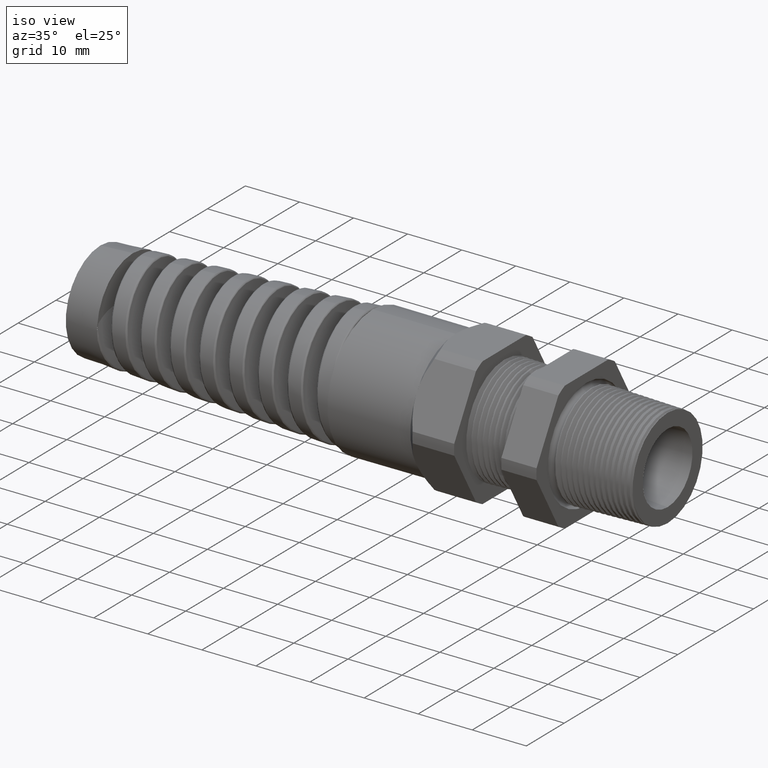
[diagram: clean part render]
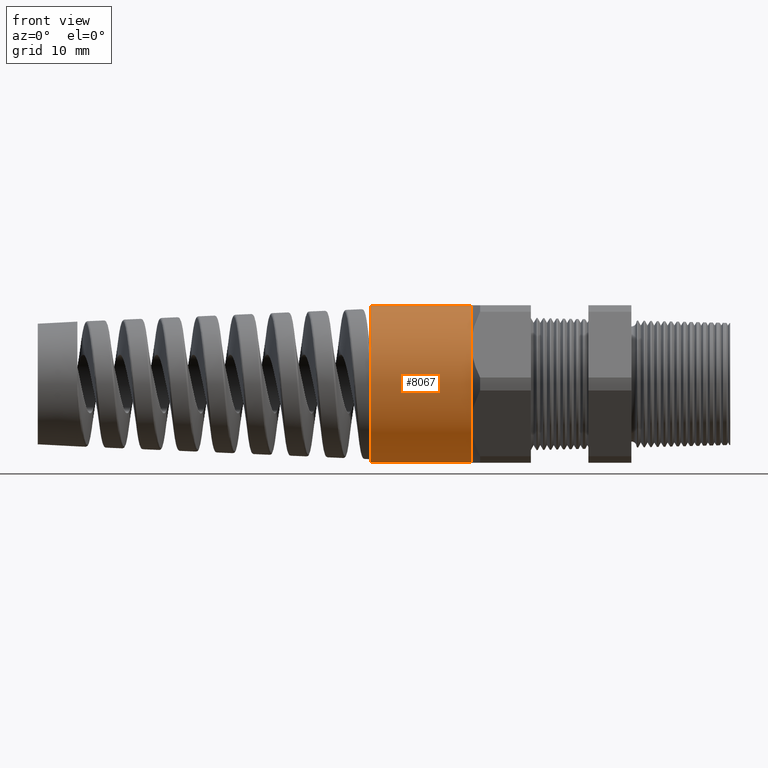
[diagram: tour spotlight — one face highlighted and labeled with its STEP entity id]
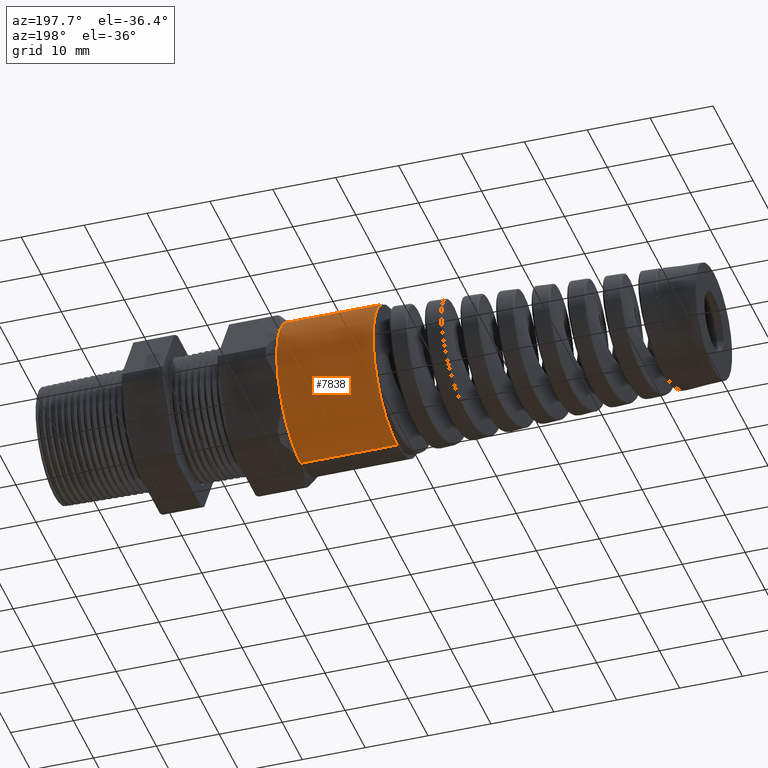
[diagram: tour spotlight — one face highlighted and labeled with its STEP entity id]
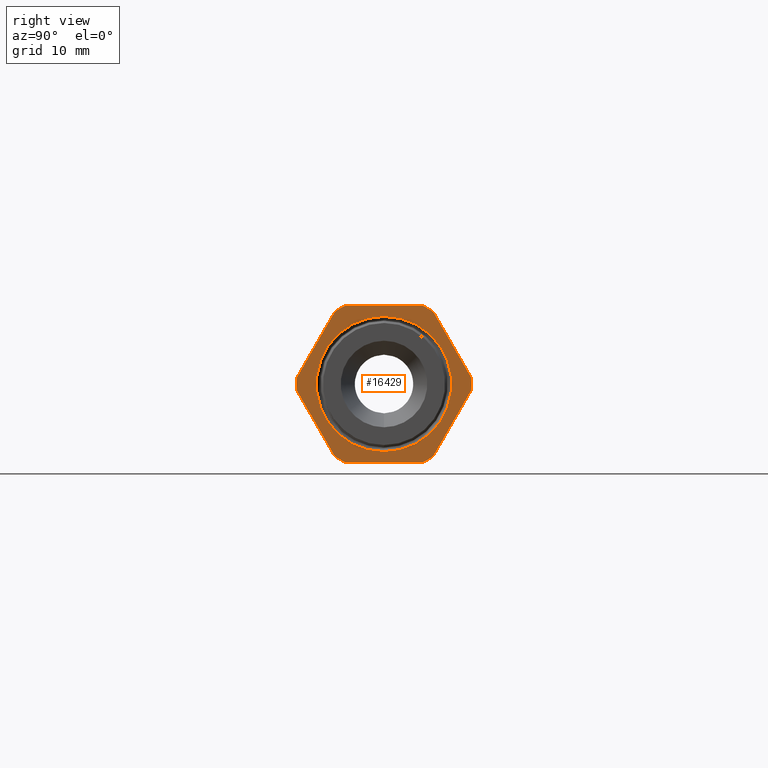
[diagram: tour spotlight — one face highlighted and labeled with its STEP entity id]
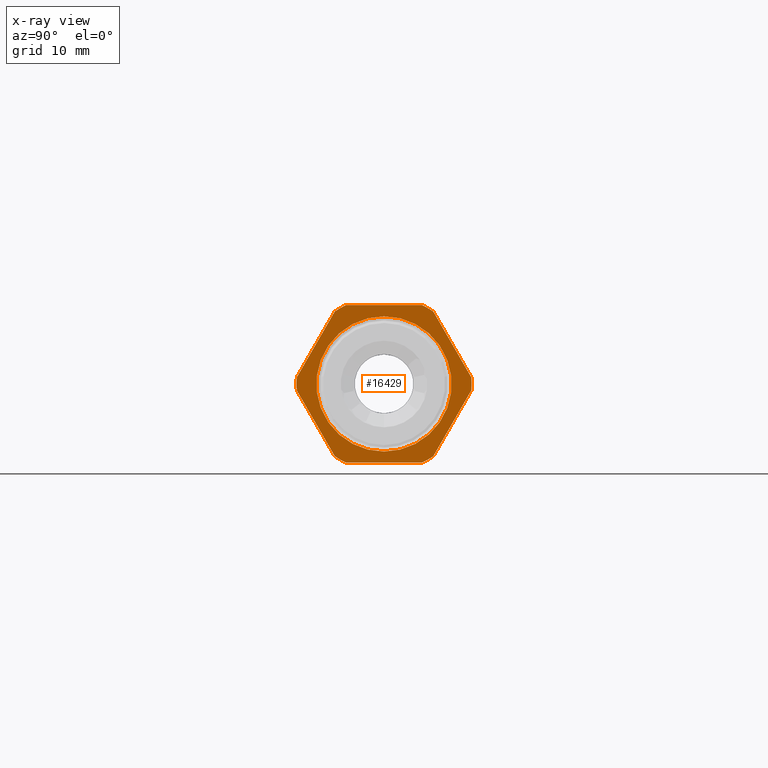
[diagram: x-ray of the same camera — body ghosted, this tour face saturated]
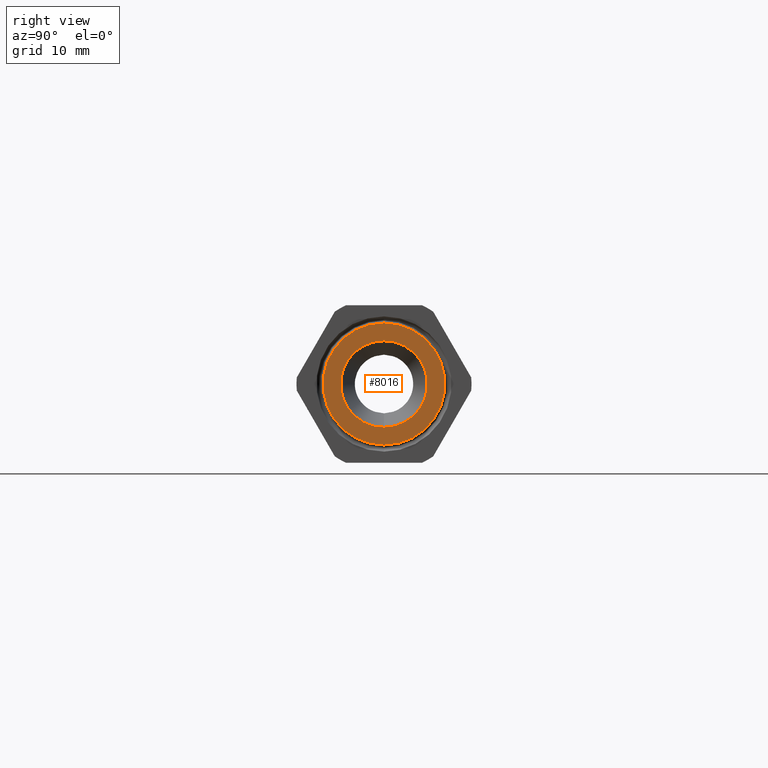
[diagram: tour spotlight — one face highlighted and labeled with its STEP entity id]
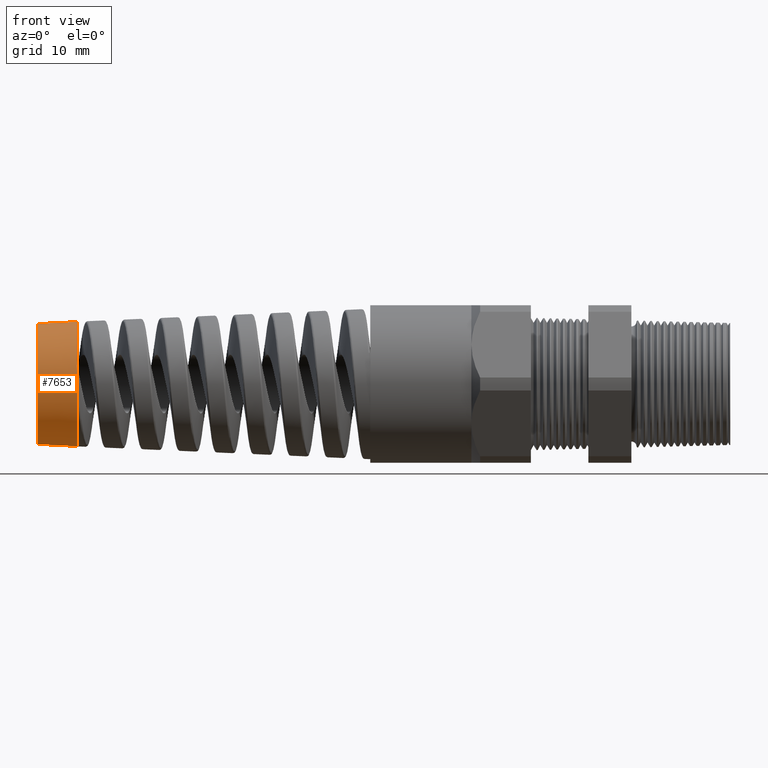
[diagram: tour spotlight — one face highlighted and labeled with its STEP entity id]
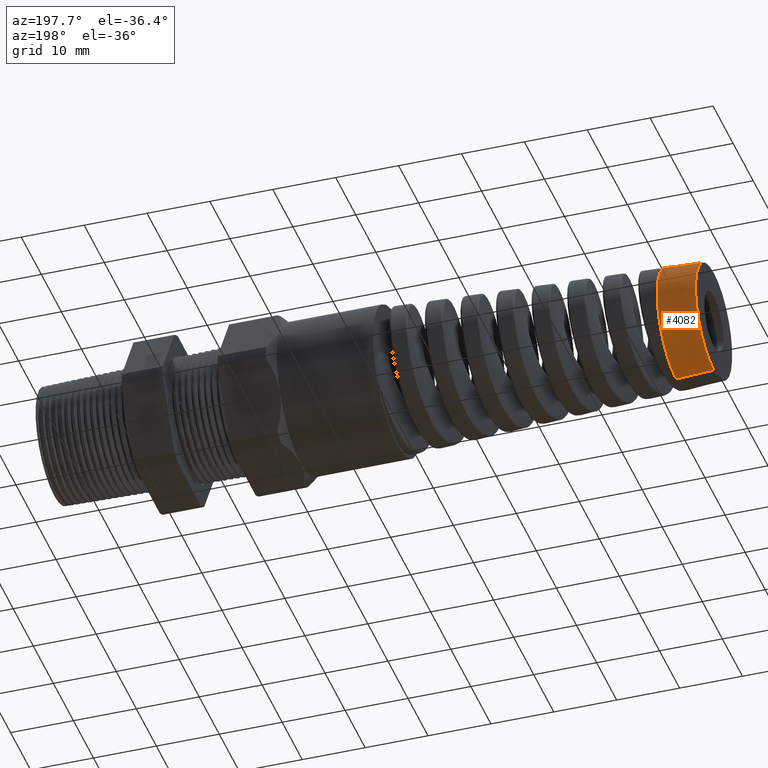
[diagram: tour spotlight — one face highlighted and labeled with its STEP entity id]
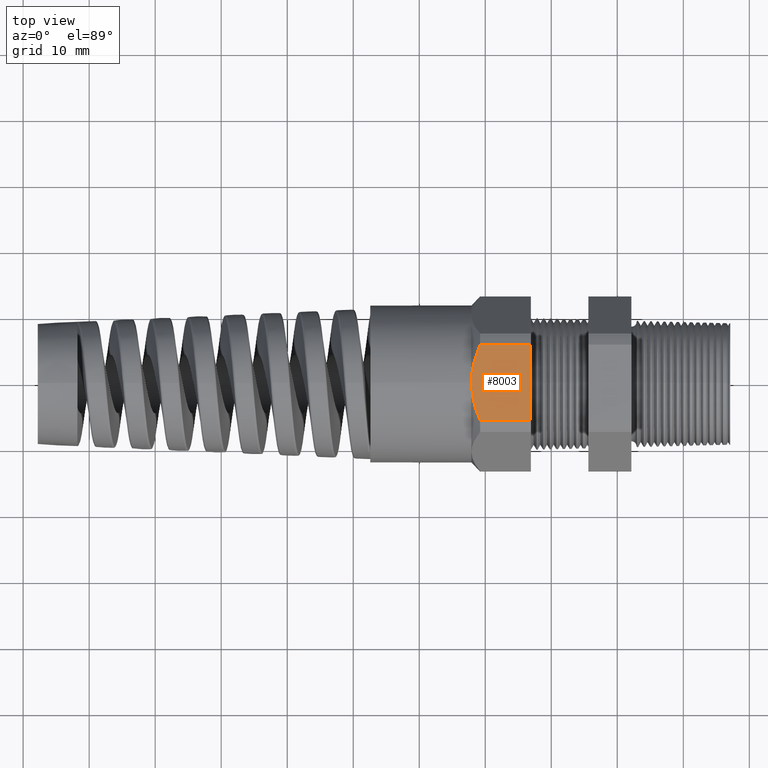
[diagram: tour spotlight — one face highlighted and labeled with its STEP entity id]
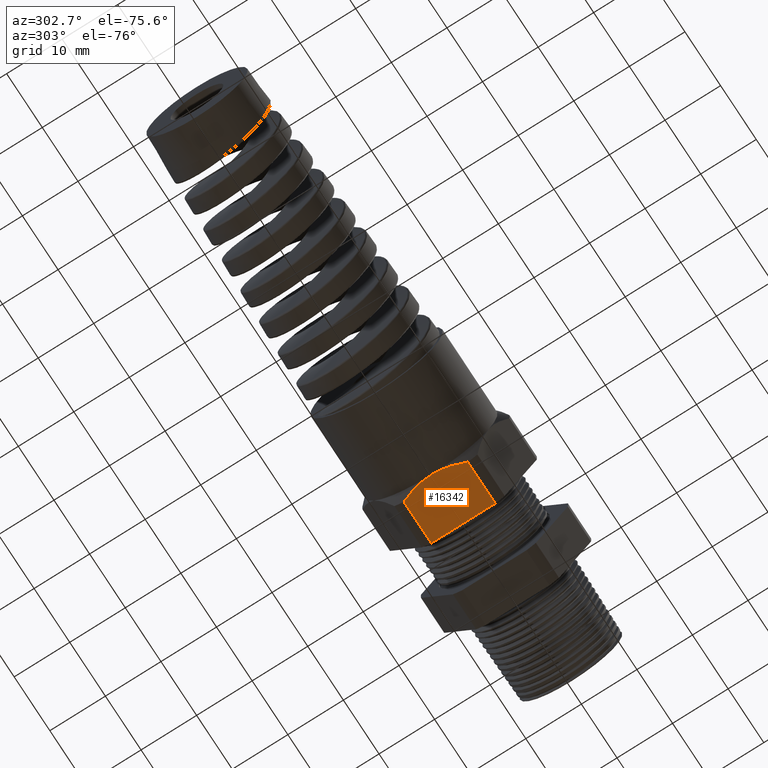
[diagram: tour spotlight — one face highlighted and labeled with its STEP entity id]
A machine part: a face-by-face anatomy tour. The part has 248 B-rep faces; the first image is the clean iso view, then the 8 largest visible faces are spotlighted one at a time (largest first), each with its STEP entity span.

Face 1 — front view, entity #8067. In plain terms, the highlighted cylindrical surface (partial cylindrical patch) has radius 11.938 mm, axis along (1, 0, 0).
Definition (entity closure, byte-faithful):
#2181 = DIRECTION ( 'NONE',  ( 1.000000000000000000, 0.0000000000000000000, 0.0000000000000000000 ) ) ;
#2447 = CARTESIAN_POINT ( 'NONE',  ( -1.866920391036122300, 0.0000000000000000000, -0.4699999999999999200 ) ) ;
#2454 = CARTESIAN_POINT ( 'NONE',  ( -1.866920391036122300, 5.755839955992558400E-017, 0.4699999999999999200 ) ) ;
#2464 = VECTOR ( 'NONE', #2181, 39.37007874015748100 ) ;
#2465 = CARTESIAN_POINT ( 'NONE',  ( 1.326736918405036800, 0.0000000000000000000, -0.4699999999999999200 ) ) ;
#2466 = LINE ( 'NONE', #2465, #2464 ) ;
#2508 = CARTESIAN_POINT ( 'NONE',  ( -1.263700787401574700, 0.0000000000000000000, 0.4699999999999999200 ) ) ;
#2509 = DIRECTION ( 'NONE',  ( 1.000000000000000000, 0.0000000000000000000, 0.0000000000000000000 ) ) ;
#2510 = VECTOR ( 'NONE', #2509, 39.37007874015748100 ) ;
#2511 = CARTESIAN_POINT ( 'NONE',  ( 1.326736918405036800, 5.755839955992558400E-017, 0.4699999999999999200 ) ) ;
#2512 = LINE ( 'NONE', #2511, #2510 ) ;
#2522 = CARTESIAN_POINT ( 'NONE',  ( -1.263700787401574700, 0.0000000000000000000, -0.4700000000000002000 ) ) ;
#2610 = CARTESIAN_POINT ( 'NONE',  ( -1.263700787401574700, -0.4070319397786862900, 0.2349999999999999300 ) ) ;
#2772 = CARTESIAN_POINT ( 'NONE',  ( -1.263700787401574700, -0.4070319397786862400, -0.2349999999999999600 ) ) ;
#2811 = DIRECTION ( 'NONE',  ( 0.0000000000000000000, 0.0000000000000000000, -1.000000000000000000 ) ) ;
#2812 = DIRECTION ( 'NONE',  ( 1.000000000000000000, 0.0000000000000000000, 0.0000000000000000000 ) ) ;
#2813 = AXIS2_PLACEMENT_3D ( 'NONE', #2821, #2812, #2811 ) ;
#2815 = CYLINDRICAL_SURFACE ( 'NONE', #2813, 0.4699999999999999200 ) ;
#2816 = FACE_OUTER_BOUND ( 'NONE', #8064, .T. ) ;
#2821 = CARTESIAN_POINT ( 'NONE',  ( 1.326736918405036800, 0.0000000000000000000, 0.0000000000000000000 ) ) ;
#2837 = AXIS2_PLACEMENT_3D ( 'NONE', #2901, #2900, #2899 ) ;
#2838 = CIRCLE ( 'NONE', #2837, 0.4699999999999999200 ) ;
#2884 = DIRECTION ( 'NONE',  ( 0.0000000000000000000, 0.0000000000000000000, -1.000000000000000000 ) ) ;
#2885 = DIRECTION ( 'NONE',  ( 1.000000000000000000, 0.0000000000000000000, 0.0000000000000000000 ) ) ;
#2886 = CARTESIAN_POINT ( 'NONE',  ( -1.263700787401574400, 0.0000000000000000000, 0.0000000000000000000 ) ) ;
#2887 = AXIS2_PLACEMENT_3D ( 'NONE', #2886, #2885, #2884 ) ;
#2888 = CIRCLE ( 'NONE', #2887, 0.4699999999999999200 ) ;
#2889 = DIRECTION ( 'NONE',  ( 0.0000000000000000000, 0.0000000000000000000, 1.000000000000000000 ) ) ;
#2890 = DIRECTION ( 'NONE',  ( -1.000000000000000000, 0.0000000000000000000, 0.0000000000000000000 ) ) ;
#2891 = CARTESIAN_POINT ( 'NONE',  ( -1.866920391036122300, 0.0000000000000000000, 0.0000000000000000000 ) ) ;
#2892 = AXIS2_PLACEMENT_3D ( 'NONE', #2891, #2890, #2889 ) ;
#2893 = CIRCLE ( 'NONE', #2892, 0.4699999999999999200 ) ;
#2894 = DIRECTION ( 'NONE',  ( 0.0000000000000000000, 0.0000000000000000000, -1.000000000000000000 ) ) ;
#2895 = DIRECTION ( 'NONE',  ( 1.000000000000000000, 0.0000000000000000000, 0.0000000000000000000 ) ) ;
#2896 = CARTESIAN_POINT ( 'NONE',  ( -1.263700787401574400, 0.0000000000000000000, 0.0000000000000000000 ) ) ;
#2897 = AXIS2_PLACEMENT_3D ( 'NONE', #2896, #2895, #2894 ) ;
#2898 = CIRCLE ( 'NONE', #2897, 0.4699999999999999200 ) ;
#2899 = DIRECTION ( 'NONE',  ( 0.0000000000000000000, 0.0000000000000000000, -1.000000000000000000 ) ) ;
#2900 = DIRECTION ( 'NONE',  ( 1.000000000000000000, 0.0000000000000000000, 0.0000000000000000000 ) ) ;
#2901 = CARTESIAN_POINT ( 'NONE',  ( -1.263700787401574400, 0.0000000000000000000, 0.0000000000000000000 ) ) ;
#7676 = VERTEX_POINT ( 'NONE', #2454 ) ;
#7684 = VERTEX_POINT ( 'NONE', #2447 ) ;
#7860 = EDGE_CURVE ( 'NONE', #7684, #7863, #2466, .T. ) ;
#7863 = VERTEX_POINT ( 'NONE', #2522 ) ;
#7866 = EDGE_CURVE ( 'NONE', #7676, #7869, #2512, .T. ) ;
#7869 = VERTEX_POINT ( 'NONE', #2508 ) ;
#7969 = VERTEX_POINT ( 'NONE', #2610 ) ;
#8032 = VERTEX_POINT ( 'NONE', #2772 ) ;
#8044 = ORIENTED_EDGE ( 'NONE', *, *, #8097, .F. ) ;
#8058 = ORIENTED_EDGE ( 'NONE', *, *, #7866, .F. ) ;
#8064 = EDGE_LOOP ( 'NONE', ( #8058, #8044, #8091, #8098, #8092, #8093 ) ) ;
#8067 = ADVANCED_FACE ( 'NONE', ( #2816 ), #2815, .T. ) ;
#8091 = ORIENTED_EDGE ( 'NONE', *, *, #7860, .T. ) ;
#8092 = ORIENTED_EDGE ( 'NONE', *, *, #8095, .F. ) ;
#8093 = ORIENTED_EDGE ( 'NONE', *, *, #8096, .F. ) ;
#8095 = EDGE_CURVE ( 'NONE', #7969, #8032, #2838, .T. ) ;
#8096 = EDGE_CURVE ( 'NONE', #7869, #7969, #2898, .T. ) ;
#8097 = EDGE_CURVE ( 'NONE', #7684, #7676, #2893, .T. ) ;
#8098 = ORIENTED_EDGE ( 'NONE', *, *, #8099, .F. ) ;
#8099 = EDGE_CURVE ( 'NONE', #8032, #7863, #2888, .T. ) ;

Face 2 — auxiliary view, entity #7838. In plain terms, the highlighted cylindrical surface (partial cylindrical patch) has radius 11.938 mm, axis along (1, 0, 0).
Definition (entity closure, byte-faithful):
#2181 = DIRECTION ( 'NONE',  ( 1.000000000000000000, 0.0000000000000000000, 0.0000000000000000000 ) ) ;
#2429 = CYLINDRICAL_SURFACE ( 'NONE', #2493, 0.4699999999999999200 ) ;
#2430 = CARTESIAN_POINT ( 'NONE',  ( 1.326736918405036800, 0.0000000000000000000, 0.0000000000000000000 ) ) ;
#2431 = FACE_OUTER_BOUND ( 'NONE', #7810, .T. ) ;
#2447 = CARTESIAN_POINT ( 'NONE',  ( -1.866920391036122300, 0.0000000000000000000, -0.4699999999999999200 ) ) ;
#2453 = CARTESIAN_POINT ( 'NONE',  ( -1.263700787401574700, 0.4070319397786864000, 0.2350000000000000100 ) ) ;
#2454 = CARTESIAN_POINT ( 'NONE',  ( -1.866920391036122300, 5.755839955992558400E-017, 0.4699999999999999200 ) ) ;
#2464 = VECTOR ( 'NONE', #2181, 39.37007874015748100 ) ;
#2465 = CARTESIAN_POINT ( 'NONE',  ( 1.326736918405036800, 0.0000000000000000000, -0.4699999999999999200 ) ) ;
#2466 = LINE ( 'NONE', #2465, #2464 ) ;
#2467 = DIRECTION ( 'NONE',  ( 0.0000000000000000000, 0.0000000000000000000, -1.000000000000000000 ) ) ;
#2468 = DIRECTION ( 'NONE',  ( 1.000000000000000000, 0.0000000000000000000, 0.0000000000000000000 ) ) ;
#2469 = AXIS2_PLACEMENT_3D ( 'NONE', #2476, #2468, #2467 ) ;
#2470 = CIRCLE ( 'NONE', #2469, 0.4699999999999999200 ) ;
#2476 = CARTESIAN_POINT ( 'NONE',  ( -1.263700787401574400, 0.0000000000000000000, 0.0000000000000000000 ) ) ;
#2486 = DIRECTION ( 'NONE',  ( 0.0000000000000000000, 0.0000000000000000000, 1.000000000000000000 ) ) ;
#2487 = DIRECTION ( 'NONE',  ( -1.000000000000000000, 0.0000000000000000000, 0.0000000000000000000 ) ) ;
#2488 = CARTESIAN_POINT ( 'NONE',  ( -1.866920391036122300, 0.0000000000000000000, 0.0000000000000000000 ) ) ;
#2489 = AXIS2_PLACEMENT_3D ( 'NONE', #2488, #2487, #2486 ) ;
#2490 = CIRCLE ( 'NONE', #2489, 0.4699999999999999200 ) ;
#2491 = DIRECTION ( 'NONE',  ( 0.0000000000000000000, 0.0000000000000000000, -1.000000000000000000 ) ) ;
#2492 = DIRECTION ( 'NONE',  ( 1.000000000000000000, 0.0000000000000000000, 0.0000000000000000000 ) ) ;
#2493 = AXIS2_PLACEMENT_3D ( 'NONE', #2430, #2492, #2491 ) ;
#2497 = DIRECTION ( 'NONE',  ( 0.0000000000000000000, 0.0000000000000000000, -1.000000000000000000 ) ) ;
#2498 = DIRECTION ( 'NONE',  ( 1.000000000000000000, 0.0000000000000000000, 0.0000000000000000000 ) ) ;
#2499 = CARTESIAN_POINT ( 'NONE',  ( -1.263700787401574400, 0.0000000000000000000, 0.0000000000000000000 ) ) ;
#2500 = AXIS2_PLACEMENT_3D ( 'NONE', #2499, #2498, #2497 ) ;
#2501 = CIRCLE ( 'NONE', #2500, 0.4699999999999999200 ) ;
#2508 = CARTESIAN_POINT ( 'NONE',  ( -1.263700787401574700, 0.0000000000000000000, 0.4699999999999999200 ) ) ;
#2509 = DIRECTION ( 'NONE',  ( 1.000000000000000000, 0.0000000000000000000, 0.0000000000000000000 ) ) ;
#2510 = VECTOR ( 'NONE', #2509, 39.37007874015748100 ) ;
#2511 = CARTESIAN_POINT ( 'NONE',  ( 1.326736918405036800, 5.755839955992558400E-017, 0.4699999999999999200 ) ) ;
#2512 = LINE ( 'NONE', #2511, #2510 ) ;
#2517 = DIRECTION ( 'NONE',  ( 0.0000000000000000000, 0.0000000000000000000, -1.000000000000000000 ) ) ;
#2518 = DIRECTION ( 'NONE',  ( 1.000000000000000000, 0.0000000000000000000, 0.0000000000000000000 ) ) ;
#2519 = CARTESIAN_POINT ( 'NONE',  ( -1.263700787401574400, 0.0000000000000000000, 0.0000000000000000000 ) ) ;
#2520 = AXIS2_PLACEMENT_3D ( 'NONE', #2519, #2518, #2517 ) ;
#2521 = CIRCLE ( 'NONE', #2520, 0.4699999999999999200 ) ;
#2522 = CARTESIAN_POINT ( 'NONE',  ( -1.263700787401574700, 0.0000000000000000000, -0.4700000000000002000 ) ) ;
#2523 = CARTESIAN_POINT ( 'NONE',  ( -1.263700787401574700, 0.4070319397786864600, -0.2350000000000001300 ) ) ;
#7676 = VERTEX_POINT ( 'NONE', #2454 ) ;
#7677 = VERTEX_POINT ( 'NONE', #2453 ) ;
#7681 = ORIENTED_EDGE ( 'NONE', *, *, #7864, .F. ) ;
#7684 = VERTEX_POINT ( 'NONE', #2447 ) ;
#7810 = EDGE_LOOP ( 'NONE', ( #7844, #7882, #7884, #7681, #7859, #7861 ) ) ;
#7838 = ADVANCED_FACE ( 'NONE', ( #2431 ), #2429, .T. ) ;
#7839 = EDGE_CURVE ( 'NONE', #7676, #7684, #2490, .T. ) ;
#7844 = ORIENTED_EDGE ( 'NONE', *, *, #7839, .F. ) ;
#7858 = EDGE_CURVE ( 'NONE', #7863, #7862, #2470, .T. ) ;
#7859 = ORIENTED_EDGE ( 'NONE', *, *, #7858, .F. ) ;
#7860 = EDGE_CURVE ( 'NONE', #7684, #7863, #2466, .T. ) ;
#7861 = ORIENTED_EDGE ( 'NONE', *, *, #7860, .F. ) ;
#7862 = VERTEX_POINT ( 'NONE', #2523 ) ;
#7863 = VERTEX_POINT ( 'NONE', #2522 ) ;
#7864 = EDGE_CURVE ( 'NONE', #7862, #7677, #2521, .T. ) ;
#7866 = EDGE_CURVE ( 'NONE', #7676, #7869, #2512, .T. ) ;
#7869 = VERTEX_POINT ( 'NONE', #2508 ) ;
#7878 = EDGE_CURVE ( 'NONE', #7677, #7869, #2501, .T. ) ;
#7882 = ORIENTED_EDGE ( 'NONE', *, *, #7866, .T. ) ;
#7884 = ORIENTED_EDGE ( 'NONE', *, *, #7878, .F. ) ;

Face 3 — right view, entity #16429. An x-ray twin of the same camera follows (body ghosted, this face saturated) — the face is partly hidden behind the body. In plain terms, the highlighted planar face has unit normal (1, 0, 0).
Definition (entity closure, byte-faithful):
#871 = DIRECTION ( 'NONE',  ( 0.0000000000000000000, 0.0000000000000000000, -1.000000000000000000 ) ) ;
#872 = DIRECTION ( 'NONE',  ( -1.000000000000000000, 0.0000000000000000000, 0.0000000000000000000 ) ) ;
#873 = CARTESIAN_POINT ( 'NONE',  ( -0.3100000000000000000, 0.0000000000000000000, 0.0000000000000000000 ) ) ;
#874 = AXIS2_PLACEMENT_3D ( 'NONE', #873, #872, #871 ) ;
#875 = CIRCLE ( 'NONE', #874, 0.4032882708283273000 ) ;
#887 = CARTESIAN_POINT ( 'NONE',  ( -0.3100000000000000000, 0.0000000000000000000, -0.4032882708283273000 ) ) ;
#888 = CARTESIAN_POINT ( 'NONE',  ( -0.3100000000000000000, 4.938856900035819000E-017, 0.4032882708283273000 ) ) ;
#3290 = CARTESIAN_POINT ( 'NONE',  ( -0.3100000000000000000, 0.2938165587564949300, 0.4310947921287048300 ) ) ;
#3349 = PLANE ( 'NONE',  #3411 ) ;
#3350 = FACE_BOUND ( 'NONE', #16491, .T. ) ;
#3351 = FACE_OUTER_BOUND ( 'NONE', #16435, .T. ) ;
#3352 = CARTESIAN_POINT ( 'NONE',  ( -0.3100000000000000000, 0.2938165587564949800, -0.4310947921287047700 ) ) ;
#3387 = CARTESIAN_POINT ( 'NONE',  ( -0.3100000000000000000, -0.2938165587564947100, 0.4310947921287050500 ) ) ;
#3394 = DIRECTION ( 'NONE',  ( 0.0000000000000000000, 0.4999999999999998900, 0.8660254037844386000 ) ) ;
#3395 = VECTOR ( 'NONE', #3394, 39.37007874015748100 ) ;
#3396 = CARTESIAN_POINT ( 'NONE',  ( -0.3100000000000000000, 0.6420319397786863300, 0.1720319397786860300 ) ) ;
#3397 = LINE ( 'NONE', #3396, #3395 ) ;
#3402 = CARTESIAN_POINT ( 'NONE',  ( -0.3100000000000000000, 0.5202473208008778800, -0.03890520787129524800 ) ) ;
#3403 = CARTESIAN_POINT ( 'NONE',  ( -0.3100000000000000000, 0.5202473208008776600, 0.03890520787129531800 ) ) ;
#3408 = DIRECTION ( 'NONE',  ( 0.0000000000000000000, 0.0000000000000000000, -1.000000000000000000 ) ) ;
#3409 = DIRECTION ( 'NONE',  ( 1.000000000000000000, 0.0000000000000000000, 0.0000000000000000000 ) ) ;
#3410 = CARTESIAN_POINT ( 'NONE',  ( -0.3100000000000000000, 0.9399999999999999500, 0.0000000000000000000 ) ) ;
#3411 = AXIS2_PLACEMENT_3D ( 'NONE', #3410, #3409, #3408 ) ;
#3412 = DIRECTION ( 'NONE',  ( 1.000000000000000000, 0.0000000000000000000, 0.0000000000000000000 ) ) ;
#3413 = CARTESIAN_POINT ( 'NONE',  ( -0.3100000000000000000, 0.0000000000000000000, 0.0000000000000000000 ) ) ;
#3414 = AXIS2_PLACEMENT_3D ( 'NONE', #3413, #3412, #3476 ) ;
#3415 = CIRCLE ( 'NONE', #3414, 0.5217000000000000500 ) ;
#3416 = DIRECTION ( 'NONE',  ( 0.0000000000000000000, 1.000000000000000000, 0.0000000000000000000 ) ) ;
#3417 = VECTOR ( 'NONE', #3416, 39.37007874015748100 ) ;
#3418 = CARTESIAN_POINT ( 'NONE',  ( -0.3100000000000000000, 0.9399999999999999500, -0.4700000000000002000 ) ) ;
#3423 = LINE ( 'NONE', #3418, #3417 ) ;
#3426 = DIRECTION ( 'NONE',  ( 0.0000000000000000000, -0.4999999999999998300, 0.8660254037844388200 ) ) ;
#3427 = VECTOR ( 'NONE', #3426, 39.37007874015748100 ) ;
#3428 = CARTESIAN_POINT ( 'NONE',  ( -0.3100000000000000000, 0.6420319397786862200, -0.1720319397786860500 ) ) ;
#3429 = LINE ( 'NONE', #3428, #3427 ) ;
#3430 = DIRECTION ( 'NONE',  ( 0.0000000000000000000, -1.000000000000000000, 0.0000000000000000000 ) ) ;
#3431 = VECTOR ( 'NONE', #3430, 39.37007874015748100 ) ;
#3432 = CARTESIAN_POINT ( 'NONE',  ( -0.3100000000000000000, 0.9399999999999999500, 0.4699999999999999200 ) ) ;
#3433 = LINE ( 'NONE', #3432, #3431 ) ;
#3434 = CARTESIAN_POINT ( 'NONE',  ( -0.3100000000000000000, 0.2264307620443832800, 0.4699999999999999200 ) ) ;
#3435 = DIRECTION ( 'NONE',  ( 0.0000000000000000000, 0.0000000000000000000, -1.000000000000000000 ) ) ;
#3436 = DIRECTION ( 'NONE',  ( 1.000000000000000000, 0.0000000000000000000, 0.0000000000000000000 ) ) ;
#3437 = CARTESIAN_POINT ( 'NONE',  ( -0.3100000000000000000, 0.0000000000000000000, 0.0000000000000000000 ) ) ;
#3438 = AXIS2_PLACEMENT_3D ( 'NONE', #3437, #3436, #3435 ) ;
#3439 = CIRCLE ( 'NONE', #3438, 0.5217000000000000500 ) ;
#3440 = CARTESIAN_POINT ( 'NONE',  ( -0.3100000000000000000, -0.2264307620443835600, 0.4699999999999997500 ) ) ;
#3441 = DIRECTION ( 'NONE',  ( 0.0000000000000000000, 0.0000000000000000000, -1.000000000000000000 ) ) ;
#3442 = DIRECTION ( 'NONE',  ( 1.000000000000000000, 0.0000000000000000000, 0.0000000000000000000 ) ) ;
#3443 = CARTESIAN_POINT ( 'NONE',  ( -0.3100000000000000000, 0.0000000000000000000, 0.0000000000000000000 ) ) ;
#3444 = AXIS2_PLACEMENT_3D ( 'NONE', #3443, #3442, #3441 ) ;
#3445 = CIRCLE ( 'NONE', #3444, 0.5217000000000000500 ) ;
#3453 = CARTESIAN_POINT ( 'NONE',  ( -0.3100000000000000000, 0.2264307620443829200, -0.4700000000000000800 ) ) ;
#3454 = DIRECTION ( 'NONE',  ( 0.0000000000000000000, 0.0000000000000000000, -1.000000000000000000 ) ) ;
#3455 = DIRECTION ( 'NONE',  ( 1.000000000000000000, 0.0000000000000000000, 0.0000000000000000000 ) ) ;
#3456 = CARTESIAN_POINT ( 'NONE',  ( -0.3100000000000000000, 0.0000000000000000000, 0.0000000000000000000 ) ) ;
#3457 = AXIS2_PLACEMENT_3D ( 'NONE', #3456, #3455, #3454 ) ;
#3458 = CIRCLE ( 'NONE', #3457, 0.5217000000000000500 ) ;
#3459 = DIRECTION ( 'NONE',  ( 0.0000000000000000000, -0.4999999999999997200, -0.8660254037844388200 ) ) ;
#3460 = VECTOR ( 'NONE', #3459, 39.37007874015748100 ) ;
#3461 = CARTESIAN_POINT ( 'NONE',  ( -0.3100000000000000000, -0.1720319397786864200, 0.6420319397786857800 ) ) ;
#3462 = LINE ( 'NONE', #3461, #3460 ) ;
#3463 = DIRECTION ( 'NONE',  ( 0.0000000000000000000, 0.0000000000000000000, -1.000000000000000000 ) ) ;
#3464 = DIRECTION ( 'NONE',  ( 1.000000000000000000, 0.0000000000000000000, 0.0000000000000000000 ) ) ;
#3465 = CARTESIAN_POINT ( 'NONE',  ( -0.3100000000000000000, 0.0000000000000000000, 0.0000000000000000000 ) ) ;
#3466 = AXIS2_PLACEMENT_3D ( 'NONE', #3465, #3464, #3463 ) ;
#3467 = CIRCLE ( 'NONE', #3466, 0.5217000000000000500 ) ;
#3468 = CARTESIAN_POINT ( 'NONE',  ( -0.3100000000000000000, -0.2264307620443828100, -0.4700000000000002000 ) ) ;
#3469 = CARTESIAN_POINT ( 'NONE',  ( -0.3100000000000000000, -0.5202473208008777700, 0.03890520787129464500 ) ) ;
#3470 = DIRECTION ( 'NONE',  ( 0.0000000000000000000, 0.4999999999999998900, -0.8660254037844386000 ) ) ;
#3471 = VECTOR ( 'NONE', #3470, 39.37007874015748900 ) ;
#3472 = CARTESIAN_POINT ( 'NONE',  ( -0.3100000000000000000, -0.1720319397786862800, -0.6420319397786862200 ) ) ;
#3473 = LINE ( 'NONE', #3472, #3471 ) ;
#3474 = CARTESIAN_POINT ( 'NONE',  ( -0.3100000000000000000, -0.5202473208008777700, -0.03890520787129508200 ) ) ;
#3475 = CARTESIAN_POINT ( 'NONE',  ( -0.3100000000000000000, -0.2938165587564944800, -0.4310947921287051100 ) ) ;
#3476 = DIRECTION ( 'NONE',  ( 0.0000000000000000000, 0.0000000000000000000, -1.000000000000000000 ) ) ;
#3490 = DIRECTION ( 'NONE',  ( 0.0000000000000000000, 0.0000000000000000000, -1.000000000000000000 ) ) ;
#3491 = DIRECTION ( 'NONE',  ( -1.000000000000000000, 0.0000000000000000000, 0.0000000000000000000 ) ) ;
#3492 = CARTESIAN_POINT ( 'NONE',  ( -0.3100000000000000000, 0.0000000000000000000, 0.0000000000000000000 ) ) ;
#3493 = AXIS2_PLACEMENT_3D ( 'NONE', #3492, #3491, #3490 ) ;
#3494 = CIRCLE ( 'NONE', #3493, 0.4032882708283273000 ) ;
#3495 = DIRECTION ( 'NONE',  ( 0.0000000000000000000, 0.0000000000000000000, -1.000000000000000000 ) ) ;
#3496 = DIRECTION ( 'NONE',  ( 1.000000000000000000, 0.0000000000000000000, 0.0000000000000000000 ) ) ;
#3497 = CARTESIAN_POINT ( 'NONE',  ( -0.3100000000000000000, 0.0000000000000000000, 0.0000000000000000000 ) ) ;
#3498 = AXIS2_PLACEMENT_3D ( 'NONE', #3497, #3496, #3495 ) ;
#3499 = CIRCLE ( 'NONE', #3498, 0.5217000000000000500 ) ;
#5219 = EDGE_CURVE ( 'NONE', #5241, #5239, #875, .T. ) ;
#5239 = VERTEX_POINT ( 'NONE', #888 ) ;
#5241 = VERTEX_POINT ( 'NONE', #887 ) ;
#16392 = VERTEX_POINT ( 'NONE', #3290 ) ;
#16427 = VERTEX_POINT ( 'NONE', #3352 ) ;
#16429 = ADVANCED_FACE ( 'NONE', ( #3351, #3350 ), #3349, .T. ) ;
#16431 = VERTEX_POINT ( 'NONE', #3403 ) ;
#16435 = EDGE_LOOP ( 'NONE', ( #16437, #16459, #16458, #16450, #16455, #16452, #16468, #16482, #16466, #16481, #16469, #16485 ) ) ;
#16437 = ORIENTED_EDGE ( 'NONE', *, *, #16440, .T. ) ;
#16438 = VERTEX_POINT ( 'NONE', #3402 ) ;
#16440 = EDGE_CURVE ( 'NONE', #16427, #16438, #3397, .T. ) ;
#16442 = VERTEX_POINT ( 'NONE', #3387 ) ;
#16448 = EDGE_CURVE ( 'NONE', #16392, #16453, #3445, .T. ) ;
#16449 = VERTEX_POINT ( 'NONE', #3440 ) ;
#16450 = ORIENTED_EDGE ( 'NONE', *, *, #16448, .T. ) ;
#16451 = EDGE_CURVE ( 'NONE', #16449, #16442, #3439, .T. ) ;
#16452 = ORIENTED_EDGE ( 'NONE', *, *, #16451, .T. ) ;
#16453 = VERTEX_POINT ( 'NONE', #3434 ) ;
#16454 = EDGE_CURVE ( 'NONE', #16453, #16449, #3433, .T. ) ;
#16455 = ORIENTED_EDGE ( 'NONE', *, *, #16454, .T. ) ;
#16457 = EDGE_CURVE ( 'NONE', #16431, #16392, #3429, .T. ) ;
#16458 = ORIENTED_EDGE ( 'NONE', *, *, #16457, .T. ) ;
#16459 = ORIENTED_EDGE ( 'NONE', *, *, #16479, .T. ) ;
#16461 = EDGE_CURVE ( 'NONE', #16473, #16480, #3423, .T. ) ;
#16462 = EDGE_CURVE ( 'NONE', #16464, #16473, #3415, .T. ) ;
#16464 = VERTEX_POINT ( 'NONE', #3475 ) ;
#16465 = VERTEX_POINT ( 'NONE', #3474 ) ;
#16466 = ORIENTED_EDGE ( 'NONE', *, *, #16470, .T. ) ;
#16468 = ORIENTED_EDGE ( 'NONE', *, *, #16477, .T. ) ;
#16469 = ORIENTED_EDGE ( 'NONE', *, *, #16461, .T. ) ;
#16470 = EDGE_CURVE ( 'NONE', #16465, #16464, #3473, .T. ) ;
#16471 = VERTEX_POINT ( 'NONE', #3469 ) ;
#16473 = VERTEX_POINT ( 'NONE', #3468 ) ;
#16476 = EDGE_CURVE ( 'NONE', #16471, #16465, #3467, .T. ) ;
#16477 = EDGE_CURVE ( 'NONE', #16442, #16471, #3462, .T. ) ;
#16479 = EDGE_CURVE ( 'NONE', #16438, #16431, #3458, .T. ) ;
#16480 = VERTEX_POINT ( 'NONE', #3453 ) ;
#16481 = ORIENTED_EDGE ( 'NONE', *, *, #16462, .T. ) ;
#16482 = ORIENTED_EDGE ( 'NONE', *, *, #16476, .T. ) ;
#16485 = ORIENTED_EDGE ( 'NONE', *, *, #16488, .T. ) ;
#16487 = ORIENTED_EDGE ( 'NONE', *, *, #5219, .T. ) ;
#16488 = EDGE_CURVE ( 'NONE', #16480, #16427, #3499, .T. ) ;
#16489 = ORIENTED_EDGE ( 'NONE', *, *, #16490, .T. ) ;
#16490 = EDGE_CURVE ( 'NONE', #5239, #5241, #3494, .T. ) ;
#16491 = EDGE_LOOP ( 'NONE', ( #16487, #16489 ) ) ;

Face 4 — right view, entity #8016. In plain terms, the highlighted planar face has unit normal (1, 0, 0).
Definition (entity closure, byte-faithful):
#327 = CARTESIAN_POINT ( 'NONE',  ( 0.2800000000000000300, 0.0000000000000000000, 0.3638552484013815000 ) ) ;
#2435 = CARTESIAN_POINT ( 'NONE',  ( 0.2800000000000000300, 0.0000000000000000000, -0.2581688578272929300 ) ) ;
#2541 = DIRECTION ( 'NONE',  ( 0.0000000000000000000, 0.0000000000000000000, -1.000000000000000000 ) ) ;
#2542 = DIRECTION ( 'NONE',  ( 1.000000000000000000, 0.0000000000000000000, 0.0000000000000000000 ) ) ;
#2543 = CARTESIAN_POINT ( 'NONE',  ( 0.2800000000000000300, 0.0000000000000000000, 0.0000000000000000000 ) ) ;
#2544 = AXIS2_PLACEMENT_3D ( 'NONE', #2543, #2542, #2541 ) ;
#2545 = CIRCLE ( 'NONE', #2544, 0.3638552484013815000 ) ;
#2547 = CARTESIAN_POINT ( 'NONE',  ( 0.2800000000000000300, 4.456617515210001900E-017, -0.3638552484013815000 ) ) ;
#2574 = CARTESIAN_POINT ( 'NONE',  ( 0.2800000000000000300, 3.161656653777223500E-017, 0.2581688578272929300 ) ) ;
#2575 = DIRECTION ( 'NONE',  ( 0.0000000000000000000, 0.0000000000000000000, -1.000000000000000000 ) ) ;
#2576 = DIRECTION ( 'NONE',  ( 1.000000000000000000, 0.0000000000000000000, 0.0000000000000000000 ) ) ;
#2577 = CARTESIAN_POINT ( 'NONE',  ( 0.2800000000000000300, 0.0000000000000000000, 0.0000000000000000000 ) ) ;
#2578 = AXIS2_PLACEMENT_3D ( 'NONE', #2577, #2576, #2575 ) ;
#2579 = CIRCLE ( 'NONE', #2578, 0.2581688578272929300 ) ;
#2683 = FACE_BOUND ( 'NONE', #16367, .T. ) ;
#2684 = FACE_OUTER_BOUND ( 'NONE', #16325, .T. ) ;
#2689 = PLANE ( 'NONE',  #2747 ) ;
#2744 = DIRECTION ( 'NONE',  ( 0.0000000000000000000, 0.0000000000000000000, -1.000000000000000000 ) ) ;
#2745 = DIRECTION ( 'NONE',  ( 1.000000000000000000, 0.0000000000000000000, 0.0000000000000000000 ) ) ;
#2746 = CARTESIAN_POINT ( 'NONE',  ( 0.2799999999999999700, 0.2581688578272929300, 0.0000000000000000000 ) ) ;
#2747 = AXIS2_PLACEMENT_3D ( 'NONE', #2746, #2745, #2744 ) ;
#2794 = DIRECTION ( 'NONE',  ( 0.0000000000000000000, 0.0000000000000000000, -1.000000000000000000 ) ) ;
#2795 = DIRECTION ( 'NONE',  ( 1.000000000000000000, 0.0000000000000000000, 0.0000000000000000000 ) ) ;
#2796 = CARTESIAN_POINT ( 'NONE',  ( 0.2800000000000000300, 0.0000000000000000000, 0.0000000000000000000 ) ) ;
#2797 = AXIS2_PLACEMENT_3D ( 'NONE', #2796, #2795, #2794 ) ;
#2804 = CIRCLE ( 'NONE', #2797, 0.3638552484013815000 ) ;
#3270 = DIRECTION ( 'NONE',  ( 0.0000000000000000000, 0.0000000000000000000, -1.000000000000000000 ) ) ;
#3271 = DIRECTION ( 'NONE',  ( 1.000000000000000000, 0.0000000000000000000, 0.0000000000000000000 ) ) ;
#3282 = AXIS2_PLACEMENT_3D ( 'NONE', #3285, #3271, #3270 ) ;
#3283 = CIRCLE ( 'NONE', #3282, 0.2581688578272929300 ) ;
#3285 = CARTESIAN_POINT ( 'NONE',  ( 0.2800000000000000300, 0.0000000000000000000, 0.0000000000000000000 ) ) ;
#5062 = VERTEX_POINT ( 'NONE', #327 ) ;
#7690 = VERTEX_POINT ( 'NONE', #2435 ) ;
#7901 = VERTEX_POINT ( 'NONE', #2547 ) ;
#7902 = EDGE_CURVE ( 'NONE', #7901, #5062, #2545, .T. ) ;
#7924 = EDGE_CURVE ( 'NONE', #7926, #7690, #2579, .T. ) ;
#7926 = VERTEX_POINT ( 'NONE', #2574 ) ;
#8016 = ADVANCED_FACE ( 'NONE', ( #2684, #2683 ), #2689, .T. ) ;
#8041 = EDGE_CURVE ( 'NONE', #5062, #7901, #2804, .T. ) ;
#16309 = ORIENTED_EDGE ( 'NONE', *, *, #7924, .F. ) ;
#16310 = ORIENTED_EDGE ( 'NONE', *, *, #8041, .T. ) ;
#16325 = EDGE_LOOP ( 'NONE', ( #16310, #16368 ) ) ;
#16365 = ORIENTED_EDGE ( 'NONE', *, *, #16366, .F. ) ;
#16366 = EDGE_CURVE ( 'NONE', #7690, #7926, #3283, .T. ) ;
#16367 = EDGE_LOOP ( 'NONE', ( #16365, #16309 ) ) ;
#16368 = ORIENTED_EDGE ( 'NONE', *, *, #7902, .T. ) ;

Face 5 — front view, entity #7653. In plain terms, the highlighted conical surface has half-angle 3 deg.
Definition (entity closure, byte-faithful):
#40 = DIRECTION ( 'NONE',  ( 0.0000000000000000000, 0.0000000000000000000, -1.000000000000000000 ) ) ;
#41 = DIRECTION ( 'NONE',  ( 1.000000000000000000, 0.0000000000000000000, 0.0000000000000000000 ) ) ;
#42 = CARTESIAN_POINT ( 'NONE',  ( -3.613780000000000200, 0.0000000000000000000, 0.0000000000000000000 ) ) ;
#43 = AXIS2_PLACEMENT_3D ( 'NONE', #42, #41, #40 ) ;
#44 = CIRCLE ( 'NONE', #43, 0.3720344495207378300 ) ;
#45 = CARTESIAN_POINT ( 'NONE',  ( -3.613780000000000200, -0.3666973055244363600, -0.06279106426332614600 ) ) ;
#2322 = FACE_OUTER_BOUND ( 'NONE', #7666, .T. ) ;
#2360 = DIRECTION ( 'NONE',  ( 0.9986295347545738300, -6.409306129323724800E-018, -0.05233595624294395300 ) ) ;
#2361 = VECTOR ( 'NONE', #2360, 39.37007874015748900 ) ;
#2362 = CARTESIAN_POINT ( 'NONE',  ( -3.613780000000000200, -4.556107977781267100E-017, -0.3720344495207439900 ) ) ;
#2363 = LINE ( 'NONE', #2362, #2361 ) ;
#2364 = DIRECTION ( 'NONE',  ( 0.9986295347545738300, 0.0000000000000000000, 0.05233595624294395300 ) ) ;
#2365 = VECTOR ( 'NONE', #2364, 39.37007874015748900 ) ;
#2366 = CARTESIAN_POINT ( 'NONE',  ( -3.613780000000000200, 0.0000000000000000000, 0.3720344495207439900 ) ) ;
#2367 = LINE ( 'NONE', #2366, #2365 ) ;
#2368 = CARTESIAN_POINT ( 'NONE',  ( -3.850000472440945600, -4.480303624455206300E-017, -0.3596546591389232500 ) ) ;
#2369 = DIRECTION ( 'NONE',  ( 0.0000000000000000000, 0.0000000000000000000, 1.000000000000000000 ) ) ;
#2370 = DIRECTION ( 'NONE',  ( -1.000000000000000000, 0.0000000000000000000, 0.0000000000000000000 ) ) ;
#2371 = CARTESIAN_POINT ( 'NONE',  ( -3.613780000000000200, 0.0000000000000000000, 0.0000000000000000000 ) ) ;
#2372 = AXIS2_PLACEMENT_3D ( 'NONE', #2371, #2370, #2369 ) ;
#2373 = CIRCLE ( 'NONE', #2372, 0.3720344495207439900 ) ;
#2374 = CARTESIAN_POINT ( 'NONE',  ( -3.850000472440945600, 0.0000000000000000000, 0.3596546591389232500 ) ) ;
#2375 = DIRECTION ( 'NONE',  ( 0.0000000000000000000, 0.0000000000000000000, 1.000000000000000000 ) ) ;
#2376 = DIRECTION ( 'NONE',  ( -1.000000000000000000, 0.0000000000000000000, 0.0000000000000000000 ) ) ;
#2377 = CARTESIAN_POINT ( 'NONE',  ( -3.850000472440945600, 0.0000000000000000000, 0.0000000000000000000 ) ) ;
#2378 = AXIS2_PLACEMENT_3D ( 'NONE', #2377, #2376, #2375 ) ;
#2379 = CIRCLE ( 'NONE', #2378, 0.3596546591389232500 ) ;
#2385 = DIRECTION ( 'NONE',  ( 0.0000000000000000000, 0.0000000000000000000, 1.000000000000000000 ) ) ;
#2386 = DIRECTION ( 'NONE',  ( 1.000000000000000000, 0.0000000000000000000, 0.0000000000000000000 ) ) ;
#2387 = CARTESIAN_POINT ( 'NONE',  ( -3.613780000000000200, 0.0000000000000000000, 0.0000000000000000000 ) ) ;
#2388 = AXIS2_PLACEMENT_3D ( 'NONE', #2387, #2386, #2385 ) ;
#2389 = CONICAL_SURFACE ( 'NONE', #2388, 0.3720344495207439900, 0.05235987755983000100 ) ;
#2428 = CARTESIAN_POINT ( 'NONE',  ( -3.613780000000000200, 0.0000000000000000000, 0.3720344495207439900 ) ) ;
#4454 = VERTEX_POINT ( 'NONE', #11739 ) ;
#5033 = EDGE_CURVE ( 'NONE', #5034, #4454, #44, .T. ) ;
#5034 = VERTEX_POINT ( 'NONE', #45 ) ;
#7651 = ORIENTED_EDGE ( 'NONE', *, *, #7657, .F. ) ;
#7652 = ORIENTED_EDGE ( 'NONE', *, *, #5033, .F. ) ;
#7653 = ADVANCED_FACE ( 'NONE', ( #2322 ), #2389, .T. ) ;
#7655 = ORIENTED_EDGE ( 'NONE', *, *, #7662, .F. ) ;
#7656 = ORIENTED_EDGE ( 'NONE', *, *, #7663, .T. ) ;
#7657 = EDGE_CURVE ( 'NONE', #7660, #7658, #2379, .T. ) ;
#7658 = VERTEX_POINT ( 'NONE', #2374 ) ;
#7659 = EDGE_CURVE ( 'NONE', #5034, #7664, #2373, .T. ) ;
#7660 = VERTEX_POINT ( 'NONE', #2368 ) ;
#7661 = ORIENTED_EDGE ( 'NONE', *, *, #7659, .T. ) ;
#7662 = EDGE_CURVE ( 'NONE', #7658, #7664, #2367, .T. ) ;
#7663 = EDGE_CURVE ( 'NONE', #7660, #4454, #2363, .T. ) ;
#7664 = VERTEX_POINT ( 'NONE', #2428 ) ;
#7666 = EDGE_LOOP ( 'NONE', ( #7651, #7656, #7652, #7661, #7655 ) ) ;
#11739 = CARTESIAN_POINT ( 'NONE',  ( -3.613780000000000200, -4.556107977781267100E-017, -0.3720344495207439900 ) ) ;

Face 6 — auxiliary view, entity #4082. In plain terms, the highlighted conical surface has half-angle 3 deg.
Definition (entity closure, byte-faithful):
#2360 = DIRECTION ( 'NONE',  ( 0.9986295347545738300, -6.409306129323724800E-018, -0.05233595624294395300 ) ) ;
#2361 = VECTOR ( 'NONE', #2360, 39.37007874015748900 ) ;
#2362 = CARTESIAN_POINT ( 'NONE',  ( -3.613780000000000200, -4.556107977781267100E-017, -0.3720344495207439900 ) ) ;
#2363 = LINE ( 'NONE', #2362, #2361 ) ;
#2364 = DIRECTION ( 'NONE',  ( 0.9986295347545738300, 0.0000000000000000000, 0.05233595624294395300 ) ) ;
#2365 = VECTOR ( 'NONE', #2364, 39.37007874015748900 ) ;
#2366 = CARTESIAN_POINT ( 'NONE',  ( -3.613780000000000200, 0.0000000000000000000, 0.3720344495207439900 ) ) ;
#2367 = LINE ( 'NONE', #2366, #2365 ) ;
#2368 = CARTESIAN_POINT ( 'NONE',  ( -3.850000472440945600, -4.480303624455206300E-017, -0.3596546591389232500 ) ) ;
#2374 = CARTESIAN_POINT ( 'NONE',  ( -3.850000472440945600, 0.0000000000000000000, 0.3596546591389232500 ) ) ;
#2428 = CARTESIAN_POINT ( 'NONE',  ( -3.613780000000000200, 0.0000000000000000000, 0.3720344495207439900 ) ) ;
#4067 = EDGE_CURVE ( 'NONE', #7658, #7660, #10428, .T. ) ;
#4075 = ORIENTED_EDGE ( 'NONE', *, *, #4115, .T. ) ;
#4076 = ORIENTED_EDGE ( 'NONE', *, *, #7662, .T. ) ;
#4077 = ORIENTED_EDGE ( 'NONE', *, *, #4067, .F. ) ;
#4078 = ORIENTED_EDGE ( 'NONE', *, *, #7663, .F. ) ;
#4079 = EDGE_LOOP ( 'NONE', ( #4078, #4077, #4076, #4075, #4156 ) ) ;
#4082 = ADVANCED_FACE ( 'NONE', ( #10423 ), #10422, .T. ) ;
#4115 = EDGE_CURVE ( 'NONE', #7664, #4470, #10471, .T. ) ;
#4156 = ORIENTED_EDGE ( 'NONE', *, *, #4456, .F. ) ;
#4454 = VERTEX_POINT ( 'NONE', #11739 ) ;
#4456 = EDGE_CURVE ( 'NONE', #4454, #4470, #11738, .T. ) ;
#4470 = VERTEX_POINT ( 'NONE', #11660 ) ;
#7658 = VERTEX_POINT ( 'NONE', #2374 ) ;
#7660 = VERTEX_POINT ( 'NONE', #2368 ) ;
#7662 = EDGE_CURVE ( 'NONE', #7658, #7664, #2367, .T. ) ;
#7663 = EDGE_CURVE ( 'NONE', #7660, #4454, #2363, .T. ) ;
#7664 = VERTEX_POINT ( 'NONE', #2428 ) ;
#10417 = DIRECTION ( 'NONE',  ( 0.0000000000000000000, 0.0000000000000000000, 1.000000000000000000 ) ) ;
#10418 = DIRECTION ( 'NONE',  ( 1.000000000000000000, 0.0000000000000000000, 0.0000000000000000000 ) ) ;
#10419 = CARTESIAN_POINT ( 'NONE',  ( -3.613780000000000200, 0.0000000000000000000, 0.0000000000000000000 ) ) ;
#10420 = AXIS2_PLACEMENT_3D ( 'NONE', #10419, #10418, #10417 ) ;
#10422 = CONICAL_SURFACE ( 'NONE', #10420, 0.3720344495207439900, 0.05235987755983000100 ) ;
#10423 = FACE_OUTER_BOUND ( 'NONE', #4079, .T. ) ;
#10424 = DIRECTION ( 'NONE',  ( 0.0000000000000000000, 0.0000000000000000000, 1.000000000000000000 ) ) ;
#10425 = DIRECTION ( 'NONE',  ( -1.000000000000000000, 0.0000000000000000000, 0.0000000000000000000 ) ) ;
#10426 = CARTESIAN_POINT ( 'NONE',  ( -3.850000472440945600, 0.0000000000000000000, 0.0000000000000000000 ) ) ;
#10427 = AXIS2_PLACEMENT_3D ( 'NONE', #10426, #10425, #10424 ) ;
#10428 = CIRCLE ( 'NONE', #10427, 0.3596546591389232500 ) ;
#10467 = DIRECTION ( 'NONE',  ( 0.0000000000000000000, 0.0000000000000000000, 1.000000000000000000 ) ) ;
#10468 = DIRECTION ( 'NONE',  ( -1.000000000000000000, 0.0000000000000000000, 0.0000000000000000000 ) ) ;
#10469 = CARTESIAN_POINT ( 'NONE',  ( -3.613780000000000200, 0.0000000000000000000, 0.0000000000000000000 ) ) ;
#10470 = AXIS2_PLACEMENT_3D ( 'NONE', #10469, #10468, #10467 ) ;
#10471 = CIRCLE ( 'NONE', #10470, 0.3720344495207439900 ) ;
#11660 = CARTESIAN_POINT ( 'NONE',  ( -3.613780000000000200, 0.3677111361746267000, -0.05655220564543519300 ) ) ;
#11734 = DIRECTION ( 'NONE',  ( 0.0000000000000000000, 0.0000000000000000000, -1.000000000000000000 ) ) ;
#11735 = DIRECTION ( 'NONE',  ( 1.000000000000000000, 0.0000000000000000000, 0.0000000000000000000 ) ) ;
#11736 = CARTESIAN_POINT ( 'NONE',  ( -3.613780000000000200, 0.0000000000000000000, 0.0000000000000000000 ) ) ;
#11737 = AXIS2_PLACEMENT_3D ( 'NONE', #11736, #11735, #11734 ) ;
#11738 = CIRCLE ( 'NONE', #11737, 0.3720344495207378300 ) ;
#11739 = CARTESIAN_POINT ( 'NONE',  ( -3.613780000000000200, -4.556107977781267100E-017, -0.3720344495207439900 ) ) ;

Face 7 — top view, entity #8003. In plain terms, the highlighted planar face has unit normal (0, 0, 1).
Definition (entity closure, byte-faithful):
#2508 = CARTESIAN_POINT ( 'NONE',  ( -1.263700787401574700, 0.0000000000000000000, 0.4699999999999999200 ) ) ;
#2621 = CARTESIAN_POINT ( 'NONE',  ( -1.212000787401574600, -0.2264307620443835900, 0.4699999999999999200 ) ) ;
#2622 = CARTESIAN_POINT ( 'NONE',  ( -1.219737667600871300, -0.2086048696456211900, 0.4699999999999999700 ) ) ;
#2623 = CARTESIAN_POINT ( 'NONE',  ( -1.226886374871043900, -0.1904348960138969600, 0.4700000000000002000 ) ) ;
#2624 = CARTESIAN_POINT ( 'NONE',  ( -1.239649360459591500, -0.1532690879941745500, 0.4699999999999999200 ) ) ;
#2625 = CARTESIAN_POINT ( 'NONE',  ( -1.245168396511388400, -0.1345390626635396800, 0.4699999999999998600 ) ) ;
#2626 = CARTESIAN_POINT ( 'NONE',  ( -1.258715606046688900, -0.07783554612607102000, 0.4699999999999999200 ) ) ;
#2627 = CARTESIAN_POINT ( 'NONE',  ( -1.263700787401574900, -0.03934296915062186100, 0.4700000000000000300 ) ) ;
#2628 = CARTESIAN_POINT ( 'NONE',  ( -1.263700787401574700, 0.0000000000000000000, 0.4699999999999999200 ) ) ;
#2633 = B_SPLINE_CURVE_WITH_KNOTS ( 'NONE', 3,
 ( #2628, #2627, #2626, #2625, #2624, #2623, #2622, #2621 ),
 .UNSPECIFIED., .F., .F.,
 ( 4, 2, 2, 4 ),
 ( 0.01501897965151427700, 0.01796263803772293900, 0.01943446723082727100, 0.02090629642393160300 ),
 .UNSPECIFIED. ) ;
#2636 = CARTESIAN_POINT ( 'NONE',  ( -1.212000787401574600, -0.2264307620443835900, 0.4699999999999999200 ) ) ;
#2637 = DIRECTION ( 'NONE',  ( -1.000000000000000000, 0.0000000000000000000, 0.0000000000000000000 ) ) ;
#2638 = VECTOR ( 'NONE', #2637, 39.37007874015748100 ) ;
#2639 = CARTESIAN_POINT ( 'NONE',  ( 0.2800000000000000300, -0.2264307620443835600, 0.4699999999999997500 ) ) ;
#2640 = LINE ( 'NONE', #2639, #2638 ) ;
#2641 = DIRECTION ( 'NONE',  ( 0.0000000000000000000, -1.000000000000000000, 0.0000000000000000000 ) ) ;
#2642 = VECTOR ( 'NONE', #2641, 39.37007874015748100 ) ;
#2643 = CARTESIAN_POINT ( 'NONE',  ( -0.9093700787401572900, 0.3950000000000000200, 0.4699999999999999200 ) ) ;
#2644 = LINE ( 'NONE', #2643, #2642 ) ;
#2645 = CARTESIAN_POINT ( 'NONE',  ( -0.9093700787401572900, -0.2264307620443835600, 0.4699999999999997500 ) ) ;
#2658 = DIRECTION ( 'NONE',  ( 1.000000000000000000, 0.0000000000000000000, 0.0000000000000000000 ) ) ;
#2659 = DIRECTION ( 'NONE',  ( 0.0000000000000000000, 0.0000000000000000000, 1.000000000000000000 ) ) ;
#2660 = CARTESIAN_POINT ( 'NONE',  ( 0.2800000000000000300, -0.2264307620443832800, 0.4699999999999999200 ) ) ;
#2661 = AXIS2_PLACEMENT_3D ( 'NONE', #2660, #2659, #2658 ) ;
#2662 = PLANE ( 'NONE',  #2661 ) ;
#2663 = FACE_OUTER_BOUND ( 'NONE', #3819, .T. ) ;
#2667 = CARTESIAN_POINT ( 'NONE',  ( -1.263700787401574700, 0.0000000000000000000, 0.4699999999999999200 ) ) ;
#2668 = CARTESIAN_POINT ( 'NONE',  ( -1.263700787401574900, 0.01964242875915815600, 0.4699999999999999200 ) ) ;
#2669 = CARTESIAN_POINT ( 'NONE',  ( -1.262454027609556400, 0.03924163778662363700, 0.4699999999999999700 ) ) ;
#2670 = CARTESIAN_POINT ( 'NONE',  ( -1.257686486788884000, 0.07782038235249987000, 0.4699999999999997500 ) ) ;
#2671 = CARTESIAN_POINT ( 'NONE',  ( -1.254168009292882400, 0.09688970369981490800, 0.4699999999999999700 ) ) ;
#2672 = CARTESIAN_POINT ( 'NONE',  ( -1.245139070595120000, 0.1346420459264780200, 0.4699999999999999200 ) ) ;
#2673 = CARTESIAN_POINT ( 'NONE',  ( -1.239629789118528400, 0.1533252955870069400, 0.4700000000000000300 ) ) ;
#2674 = CARTESIAN_POINT ( 'NONE',  ( -1.226911610827741800, 0.1903621927138392500, 0.4699999999999999200 ) ) ;
#2675 = CARTESIAN_POINT ( 'NONE',  ( -1.219737517183348900, 0.2086052162099337200, 0.4699999999999998600 ) ) ;
#2676 = CARTESIAN_POINT ( 'NONE',  ( -1.212000787401574800, 0.2264307620443832800, 0.4699999999999999200 ) ) ;
#2679 = B_SPLINE_CURVE_WITH_KNOTS ( 'NONE', 3,
 ( #2676, #2675, #2674, #2673, #2672, #2671, #2670, #2669, #2668, #2667 ),
 .UNSPECIFIED., .F., .F.,
 ( 4, 2, 2, 2, 4 ),
 ( 0.009140358755258072600, 0.01061001397932212500, 0.01207966920338617500, 0.01354932442745022600, 0.01501897965151427700 ),
 .UNSPECIFIED. ) ;
#3819 = EDGE_LOOP ( 'NONE', ( #7997, #7996, #7992, #7989, #7984 ) ) ;
#3820 = VERTEX_POINT ( 'NONE', #5981 ) ;
#3824 = VERTEX_POINT ( 'NONE', #5971 ) ;
#3826 = EDGE_CURVE ( 'NONE', #3820, #3824, #5970, .T. ) ;
#5967 = DIRECTION ( 'NONE',  ( -1.000000000000000000, 0.0000000000000000000, 0.0000000000000000000 ) ) ;
#5968 = VECTOR ( 'NONE', #5967, 39.37007874015748100 ) ;
#5969 = CARTESIAN_POINT ( 'NONE',  ( 0.2800000000000000300, 0.2264307620443832800, 0.4699999999999999200 ) ) ;
#5970 = LINE ( 'NONE', #5969, #5968 ) ;
#5971 = CARTESIAN_POINT ( 'NONE',  ( -1.212000787401574800, 0.2264307620443832800, 0.4699999999999999200 ) ) ;
#5981 = CARTESIAN_POINT ( 'NONE',  ( -0.9093700787401572900, 0.2264307620443832800, 0.4699999999999999200 ) ) ;
#7869 = VERTEX_POINT ( 'NONE', #2508 ) ;
#7982 = VERTEX_POINT ( 'NONE', #2645 ) ;
#7983 = EDGE_CURVE ( 'NONE', #3820, #7982, #2644, .T. ) ;
#7984 = ORIENTED_EDGE ( 'NONE', *, *, #7983, .F. ) ;
#7987 = EDGE_CURVE ( 'NONE', #7982, #7988, #2640, .T. ) ;
#7988 = VERTEX_POINT ( 'NONE', #2636 ) ;
#7989 = ORIENTED_EDGE ( 'NONE', *, *, #7987, .F. ) ;
#7991 = EDGE_CURVE ( 'NONE', #7869, #7988, #2633, .T. ) ;
#7992 = ORIENTED_EDGE ( 'NONE', *, *, #7991, .T. ) ;
#7996 = ORIENTED_EDGE ( 'NONE', *, *, #7998, .T. ) ;
#7997 = ORIENTED_EDGE ( 'NONE', *, *, #3826, .T. ) ;
#7998 = EDGE_CURVE ( 'NONE', #3824, #7869, #2679, .T. ) ;
#8003 = ADVANCED_FACE ( 'NONE', ( #2663 ), #2662, .T. ) ;

Face 8 — auxiliary view, entity #16342. In plain terms, the highlighted planar face has unit normal (0, 0, -1).
Definition (entity closure, byte-faithful):
#2522 = CARTESIAN_POINT ( 'NONE',  ( -1.263700787401574700, 0.0000000000000000000, -0.4700000000000002000 ) ) ;
#3128 = CARTESIAN_POINT ( 'NONE',  ( -1.212000787401574600, -0.2264307620443828100, -0.4700000000000002000 ) ) ;
#3134 = CARTESIAN_POINT ( 'NONE',  ( -0.9093700787401572900, 0.2264307620443829200, -0.4700000000000000800 ) ) ;
#3135 = CARTESIAN_POINT ( 'NONE',  ( -1.212000787401574600, 0.2264307620443829200, -0.4700000000000000800 ) ) ;
#3155 = DIRECTION ( 'NONE',  ( -1.000000000000000000, 0.0000000000000000000, 0.0000000000000000000 ) ) ;
#3156 = VECTOR ( 'NONE', #3155, 39.37007874015748100 ) ;
#3157 = CARTESIAN_POINT ( 'NONE',  ( 0.2800000000000000300, -0.2264307620443828100, -0.4700000000000002000 ) ) ;
#3158 = LINE ( 'NONE', #3157, #3156 ) ;
#3165 = CARTESIAN_POINT ( 'NONE',  ( -1.219737667600870700, -0.2086048696456204200, -0.4700000000000000800 ) ) ;
#3166 = CARTESIAN_POINT ( 'NONE',  ( -1.212000787401574600, -0.2264307620443828100, -0.4700000000000002000 ) ) ;
#3167 = CARTESIAN_POINT ( 'NONE',  ( -1.212000787401574600, 0.2264307620443829200, -0.4700000000000000800 ) ) ;
#3168 = CARTESIAN_POINT ( 'NONE',  ( -1.219737517183348400, 0.2086052162099333000, -0.4700000000000002500 ) ) ;
#3169 = CARTESIAN_POINT ( 'NONE',  ( -1.226911610827741800, 0.1903621927138388100, -0.4700000000000002000 ) ) ;
#3170 = CARTESIAN_POINT ( 'NONE',  ( -1.239629789118527700, 0.1533252955870065500, -0.4700000000000002500 ) ) ;
#3171 = CARTESIAN_POINT ( 'NONE',  ( -1.245139070595120200, 0.1346420459264776600, -0.4700000000000002000 ) ) ;
#3172 = CARTESIAN_POINT ( 'NONE',  ( -1.254168009292882400, 0.09688970369981468600, -0.4700000000000002500 ) ) ;
#3173 = CARTESIAN_POINT ( 'NONE',  ( -1.257686486788883700, 0.07782038235249966200, -0.4700000000000000800 ) ) ;
#3174 = CARTESIAN_POINT ( 'NONE',  ( -1.262454027609556600, 0.03924163778662352600, -0.4700000000000002500 ) ) ;
#3175 = CARTESIAN_POINT ( 'NONE',  ( -1.263700787401574000, 0.01964242875915814600, -0.4699999999999999700 ) ) ;
#3176 = CARTESIAN_POINT ( 'NONE',  ( -1.263700787401574700, 0.0000000000000000000, -0.4700000000000002000 ) ) ;
#3177 = B_SPLINE_CURVE_WITH_KNOTS ( 'NONE', 3,
 ( #3166, #3165, #3225, #3224, #3223, #3222, #3221, #3220 ),
 .UNSPECIFIED., .F., .F.,
 ( 4, 2, 2, 4 ),
 ( 0.008098547117357335000, 0.009570982036025174600, 0.01104341695469300900, 0.01398828679202868100 ),
 .UNSPECIFIED. ) ;
#3180 = B_SPLINE_CURVE_WITH_KNOTS ( 'NONE', 3,
 ( #3176, #3175, #3174, #3173, #3172, #3171, #3170, #3169, #3168, #3167 ),
 .UNSPECIFIED., .F., .F.,
 ( 4, 2, 2, 2, 4 ),
 ( 0.01398828679202868100, 0.01545854684696776000, 0.01692880690190683900, 0.01839906695684592100, 0.01986932701178499900 ),
 .UNSPECIFIED. ) ;
#3181 = DIRECTION ( 'NONE',  ( -1.000000000000000000, 0.0000000000000000000, 0.0000000000000000000 ) ) ;
#3182 = VECTOR ( 'NONE', #3181, 39.37007874015748100 ) ;
#3183 = CARTESIAN_POINT ( 'NONE',  ( 0.2800000000000000300, 0.2264307620443829200, -0.4700000000000000800 ) ) ;
#3184 = LINE ( 'NONE', #3183, #3182 ) ;
#3193 = CARTESIAN_POINT ( 'NONE',  ( -0.9093700787401572900, -0.2264307620443828100, -0.4700000000000002000 ) ) ;
#3206 = DIRECTION ( 'NONE',  ( -1.000000000000000000, 0.0000000000000000000, 0.0000000000000000000 ) ) ;
#3207 = DIRECTION ( 'NONE',  ( 0.0000000000000000000, 0.0000000000000000000, -1.000000000000000000 ) ) ;
#3208 = CARTESIAN_POINT ( 'NONE',  ( 0.2800000000000000300, 0.2264307620443828100, -0.4700000000000002000 ) ) ;
#3209 = AXIS2_PLACEMENT_3D ( 'NONE', #3208, #3207, #3206 ) ;
#3210 = PLANE ( 'NONE',  #3209 ) ;
#3211 = FACE_OUTER_BOUND ( 'NONE', #16348, .T. ) ;
#3220 = CARTESIAN_POINT ( 'NONE',  ( -1.263700787401574700, 0.0000000000000000000, -0.4700000000000002000 ) ) ;
#3221 = CARTESIAN_POINT ( 'NONE',  ( -1.263700787401574400, -0.03934296915062161100, -0.4700000000000002500 ) ) ;
#3222 = CARTESIAN_POINT ( 'NONE',  ( -1.258715606046688000, -0.07783554612607059000, -0.4700000000000002000 ) ) ;
#3223 = CARTESIAN_POINT ( 'NONE',  ( -1.245168396511388400, -0.1345390626635391600, -0.4700000000000002000 ) ) ;
#3224 = CARTESIAN_POINT ( 'NONE',  ( -1.239649360459592000, -0.1532690879941739900, -0.4700000000000002500 ) ) ;
#3225 = CARTESIAN_POINT ( 'NONE',  ( -1.226886374871043700, -0.1904348960138961500, -0.4700000000000002000 ) ) ;
#3246 = DIRECTION ( 'NONE',  ( 0.0000000000000000000, 1.000000000000000000, 0.0000000000000000000 ) ) ;
#3247 = VECTOR ( 'NONE', #3246, 39.37007874015748100 ) ;
#3248 = CARTESIAN_POINT ( 'NONE',  ( -0.9093700787401572900, 0.3950000000000000200, -0.4700000000000002000 ) ) ;
#3253 = LINE ( 'NONE', #3248, #3247 ) ;
#7863 = VERTEX_POINT ( 'NONE', #2522 ) ;
#14633 = VERTEX_POINT ( 'NONE', #3128 ) ;
#16311 = EDGE_CURVE ( 'NONE', #16350, #14633, #3158, .T. ) ;
#16321 = VERTEX_POINT ( 'NONE', #3135 ) ;
#16322 = VERTEX_POINT ( 'NONE', #3134 ) ;
#16328 = EDGE_CURVE ( 'NONE', #16322, #16321, #3184, .T. ) ;
#16329 = ORIENTED_EDGE ( 'NONE', *, *, #16328, .F. ) ;
#16330 = EDGE_CURVE ( 'NONE', #7863, #16321, #3180, .T. ) ;
#16331 = ORIENTED_EDGE ( 'NONE', *, *, #16330, .T. ) ;
#16332 = EDGE_CURVE ( 'NONE', #14633, #7863, #3177, .T. ) ;
#16342 = ADVANCED_FACE ( 'NONE', ( #3211 ), #3210, .T. ) ;
#16343 = ORIENTED_EDGE ( 'NONE', *, *, #16311, .T. ) ;
#16348 = EDGE_LOOP ( 'NONE', ( #16343, #16349, #16331, #16329, #16353 ) ) ;
#16349 = ORIENTED_EDGE ( 'NONE', *, *, #16332, .T. ) ;
#16350 = VERTEX_POINT ( 'NONE', #3193 ) ;
#16353 = ORIENTED_EDGE ( 'NONE', *, *, #16354, .F. ) ;
#16354 = EDGE_CURVE ( 'NONE', #16350, #16322, #3253, .T. ) ;